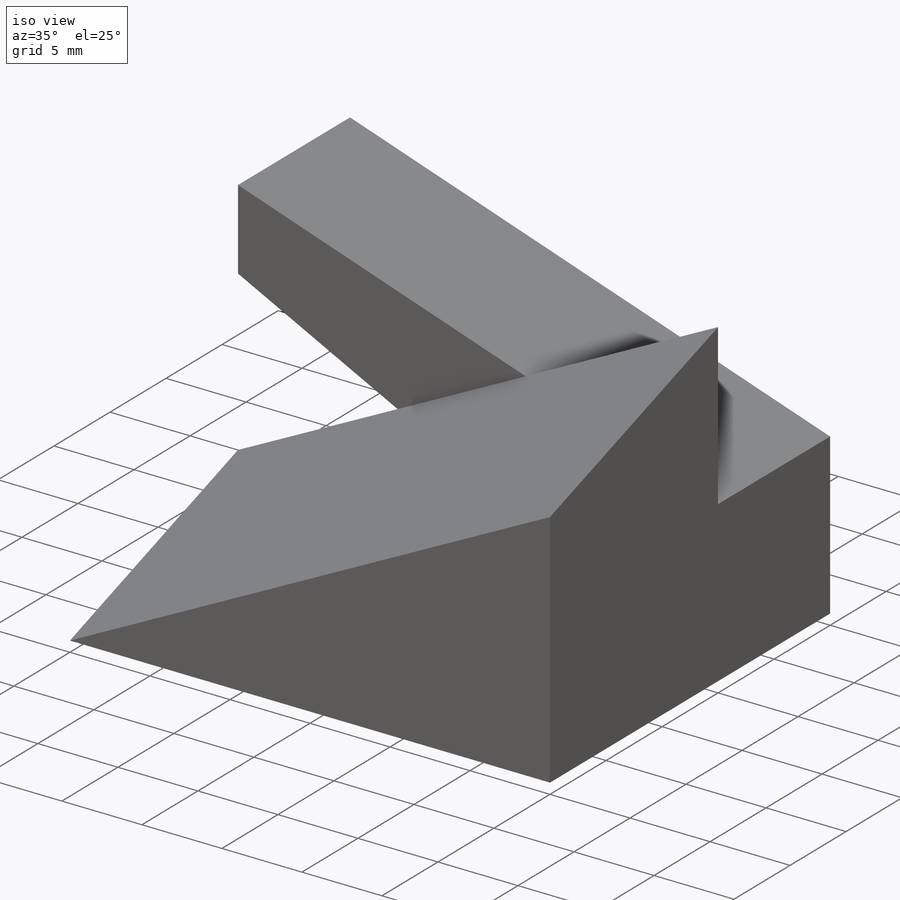
[diagram: iso view]
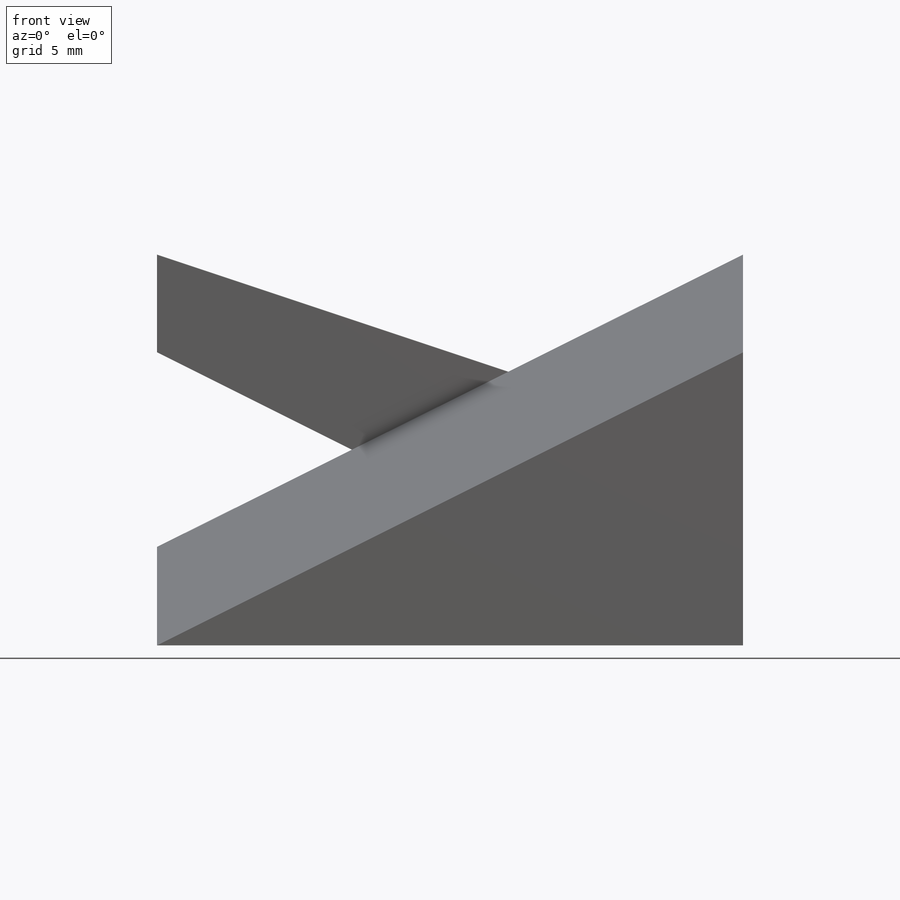
[diagram: front view]
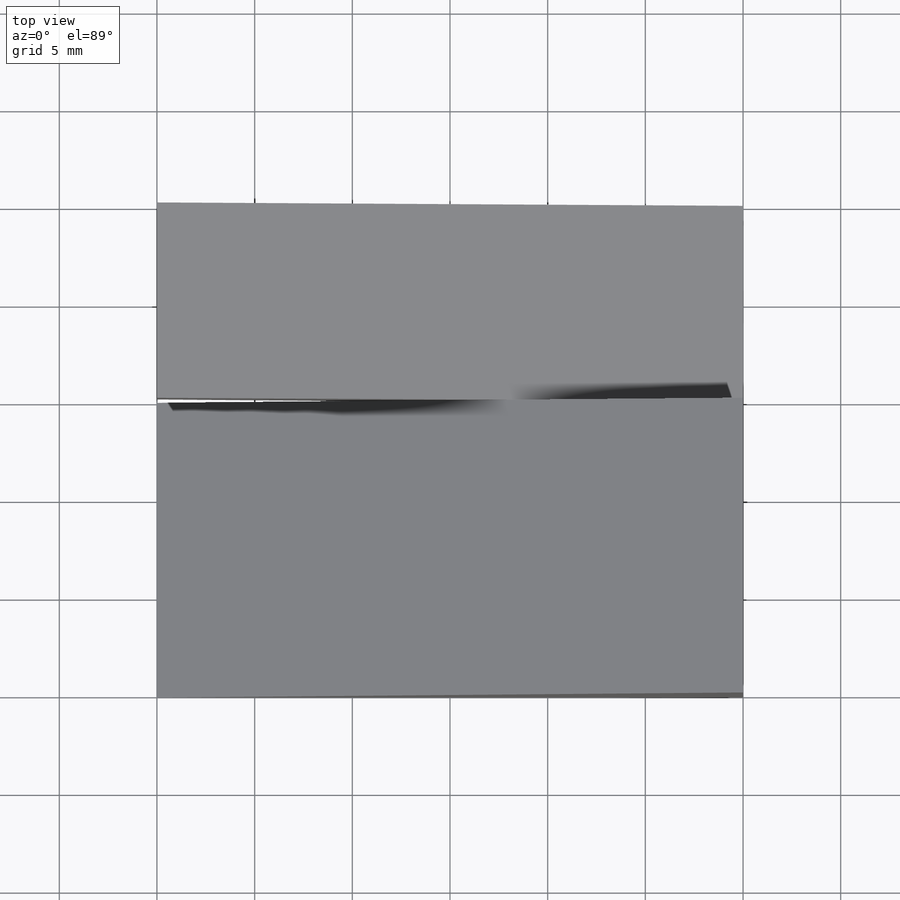
[diagram: top view]
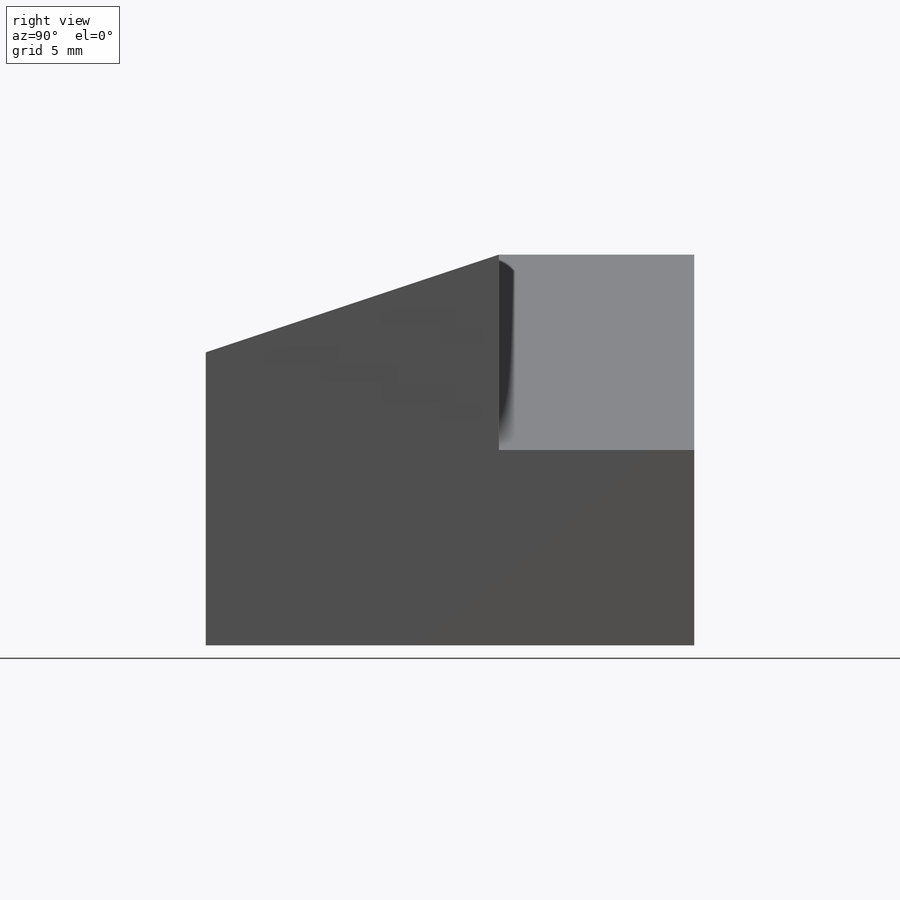
[diagram: right view]
SOLIDWORKS PART (.sldprt)
format: sldprt  version: not decoded by parser v0  size: 140,288 bytes
history: native  units: mm
features: sketch x3, extrude x2, material x1, cut_extrude x1 (+13 scaffold rows collapsed)
feature tree (20):
  scaffold x13  (default folders/planes/origin — collapsed)
  material  "Material <not specified>"
  sketch  "Sketch1"  dims[D1=5.0mm D2=10.0mm D3=30.0mm D4=10.0mm D5=15.0mm]
  extrude  "Boss-Extrude1"  Depth=10mm
  sketch  "Sketch2"
  extrude  "Boss-Extrude2"  Depth=15mm
  sketch  "3DSketch1"  dims[D1=~14.962743mm D2=15.0mm]
  cut_extrude  "Cut-Extrude1"  Depth=32mm
decode coverage: 5 of 6 modeling features carry decoded parameters
note: ~ marks probable driven/reference dimensions
note: suppression state not decoded; provenance and decode notes live in map.json
